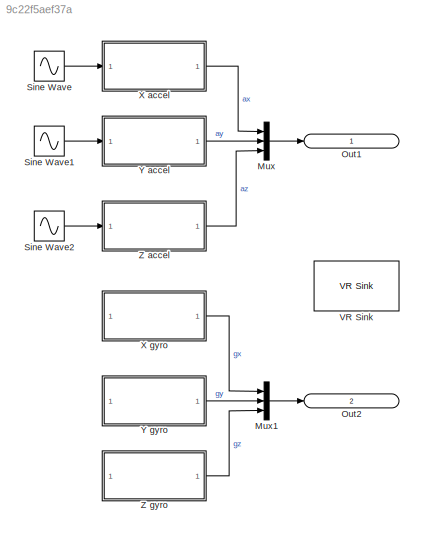
MODEL slx_9c22f5aef37a
KIND model
CONFIG AbsTol = auto
CONFIG FixedStep = auto
CONFIG MaxStep = auto
CONFIG MinStep = auto
CONFIG RelTol = 1e-3
CONFIG SampleTimeConstraint = Unconstrained
CONFIG Solver = ode45
CONFIG SolverMode = Auto
CONFIG SolverName = ode45
CONFIG StartTime = 0.0
CONFIG StopTime = 10.0
BLOCK [Mux] Mux
  DisplayOption = bar
  Inputs = 3
  Ports = [3, 1]
BLOCK [Mux] Mux1
  DisplayOption = bar
  Inputs = 3
  Ports = [3, 1]
BLOCK [Outport] Out1
  IconDisplay = Port number and signal name
BLOCK [Outport] Out2
  IconDisplay = Port number and signal name
  Port = 2
BLOCK [Sin] Sine Wave
  Ports = [0, 1]
  SampleTime = 0
BLOCK [Sin] Sine Wave1
  Phase = pi/4
  Ports = [0, 1]
  SampleTime = 0
BLOCK [Sin] Sine Wave2
  Phase = pi/2
  Ports = [0, 1]
  SampleTime = 0
BLOCK [Reference] VR Sink  REF=vrlib/VR Sink
  AllowVariableSize = off
  AutoView = off
  InstantiateOnLoad = on
  Ports = []
  RemoteChange = off
  RemoteView = off
  SampleTime = 0.1
  SourceBlock = vrlib/VR Sink
  SourceType = Virtual Reality Sink
  VideoDimensions = []
  ViewEnable = on
  WorldFileName = <path>
BLOCK [ModelReference] X accel
  CopyOfModelName = accelerometer.slx
  ModelNameDialog = accelerometer.slx
  ModelReferenceVersion = 1.22
  ParameterArgumentNames = randomSeed
  ParameterArgumentValues = 11
  Ports = [1, 1]
BLOCK [ModelReference] X gyro
  CopyOfModelName = gyroscope.slx
  ModelNameDialog = gyroscope.slx
  ModelReferenceVersion = 1.23
  ParameterArgumentNames = randomSeed
  ParameterArgumentValues = 19
  Ports = [1, 1]
BLOCK [ModelReference] Y accel
  CopyOfModelName = accelerometer.slx
  ModelNameDialog = accelerometer.slx
  ModelReferenceVersion = 1.22
  ParameterArgumentNames = randomSeed
  ParameterArgumentValues = 13
  Ports = [1, 1]
BLOCK [ModelReference] Y gyro
  CopyOfModelName = gyroscope.slx
  ModelNameDialog = gyroscope.slx
  ModelReferenceVersion = 1.23
  ParameterArgumentNames = randomSeed
  ParameterArgumentValues = 23
  Ports = [1, 1]
BLOCK [ModelReference] Z accel
  CopyOfModelName = accelerometer.slx
  ModelNameDialog = accelerometer.slx
  ModelReferenceVersion = 1.22
  ParameterArgumentNames = randomSeed
  ParameterArgumentValues = 17
  Ports = [1, 1]
BLOCK [ModelReference] Z gyro
  CopyOfModelName = gyroscope.slx
  ModelNameDialog = gyroscope.slx
  ModelReferenceVersion = 1.23
  ParameterArgumentNames = randomSeed
  ParameterArgumentValues = 29
  Ports = [1, 1]
LINE Mux1:1 -> Out2:1
LINE Mux:1 -> Out1:1
LINE Sine Wave1:1 -> Y accel:1
LINE Sine Wave2:1 -> Z accel:1
LINE Sine Wave:1 -> X accel:1
LINE X accel:1 -> Mux:1
LINE X gyro:1 -> Mux1:1
LINE Y accel:1 -> Mux:2
LINE Y gyro:1 -> Mux1:2
LINE Z accel:1 -> Mux:3
LINE Z gyro:1 -> Mux1:3
note: 1 file-system path scrubbed to <path> (not preserved elsewhere — flat text is the only slx artifact)
